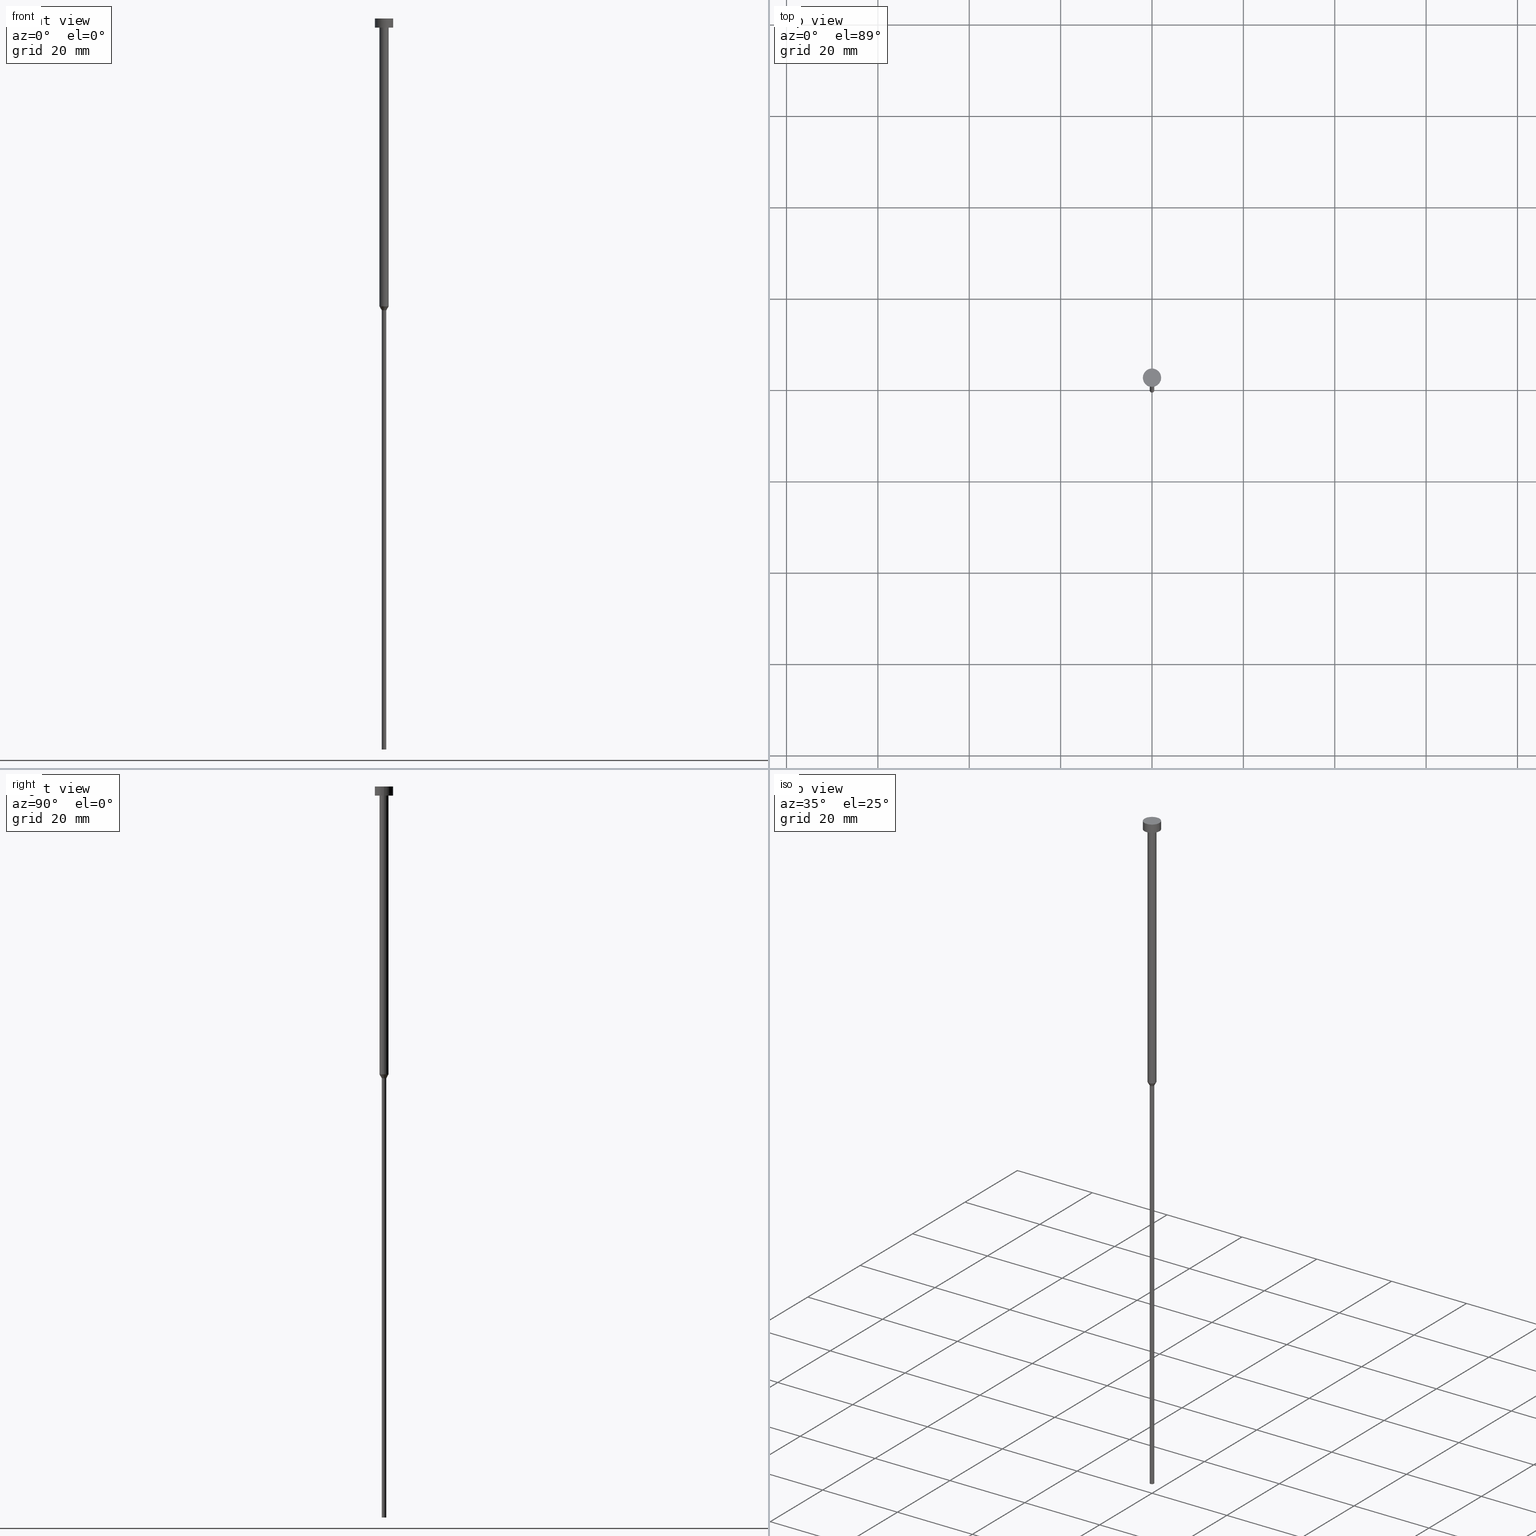
[diagram: canonical four-view strip — front | top / right | iso, engineering-drawing reading convention]
A machine part, canonical four-view strip (front | top / right | iso — engineering-drawing reading convention). The complete STEP part file that produces these views, byte-faithful:
ISO-10303-21;
HEADER;
FILE_DESCRIPTION (( 'STEP AP203' ),
    '1' );
FILE_NAME ('50a5.STEP',
    '2023-02-13T11:51:35',
    ( '' ),
    ( '' ),
    'SwSTEP 2.0',
    'SolidWorks 2019',
    '' );
FILE_SCHEMA (( 'CONFIG_CONTROL_DESIGN' ));
ENDSEC;

DATA;
#1 = VECTOR ( 'NONE', #180, 1000.000000000000000 ) ;
#2 = LINE ( 'NONE', #271, #299 ) ;
#3 = AXIS2_PLACEMENT_3D ( 'NONE', #47, #158, #269 ) ;
#4 = CARTESIAN_POINT ( 'NONE',  ( 0.000000000000000000, 0.000000000000000000, -160.0000000000000000 ) ) ;
#5 = DIRECTION ( 'NONE',  ( 0.000000000000000000, 0.000000000000000000, 1.000000000000000000 ) ) ;
#6 = CC_DESIGN_SECURITY_CLASSIFICATION ( #266, ( #83 ) ) ;
#7 = CARTESIAN_POINT ( 'NONE',  ( 2.000000000000000000, 0.000000000000000000, 0.000000000000000000 ) ) ;
#8 = ADVANCED_FACE ( 'NONE', ( #301 ), #300, .T. ) ;
#9 = FACE_OUTER_BOUND ( 'NONE', #208, .T. ) ;
#10 = ORIENTED_EDGE ( 'NONE', *, *, #172, .F. ) ;
#11 = CARTESIAN_POINT ( 'NONE',  ( -1.000000000000003331, 1.224646799147357151E-16, 0.000000000000000000 ) ) ;
#12 = ORGANIZATION ( 'NEUR�EN�', 'NEUR�EN�', '' ) ;
#13 = ORIENTED_EDGE ( 'NONE', *, *, #136, .T. ) ;
#14 = CARTESIAN_POINT ( 'NONE',  ( 0.000000000000000000, 0.000000000000000000, 0.000000000000000000 ) ) ;
#15 = ORIENTED_EDGE ( 'NONE', *, *, #143, .F. ) ;
#16 = ADVANCED_FACE ( 'NONE', ( #51 ), #99, .T. ) ;
#17 = ORIENTED_EDGE ( 'NONE', *, *, #264, .F. ) ;
#18 = LINE ( 'NONE', #48, #334 ) ;
#19 = LINE ( 'NONE', #130, #311 ) ;
#20 = CARTESIAN_POINT ( 'NONE',  ( -2.000000000000000000, 2.449293598294706414E-16, -2.000000000000000444 ) ) ;
#21 = CARTESIAN_POINT ( 'NONE',  ( 1.000000000000003109, 0.000000000000000000, -63.00000000000000000 ) ) ;
#22 = ADVANCED_BREP_SHAPE_REPRESENTATION ( '50a5', ( #231, #220 ), #63 ) ;
#23 = AXIS2_PLACEMENT_3D ( 'NONE', #223, #114, #65 ) ;
#24 = APPROVAL_DATE_TIME ( #30, #284 ) ;
#25 = ADVANCED_FACE ( 'NONE', ( #107, #267 ), #72, .T. ) ;
#26 = DIRECTION ( 'NONE',  ( 1.000000000000000000, 0.000000000000000000, 0.000000000000000000 ) ) ;
#27 = DIRECTION ( 'NONE',  ( 1.000000000000000000, 0.000000000000000000, 0.000000000000000000 ) ) ;
#28 = DIRECTION ( 'NONE',  ( 0.000000000000000000, 0.000000000000000000, -1.000000000000000000 ) ) ;
#29 = CC_DESIGN_PERSON_AND_ORGANIZATION_ASSIGNMENT ( #187, #326, ( #83 ) ) ;
#30 = DATE_AND_TIME ( #106, #142 ) ;
#31 = APPLICATION_CONTEXT ( 'configuration controlled 3d designs of mechanical parts and assemblies' ) ;
#32 = AXIS2_PLACEMENT_3D ( 'NONE', #351, #135, #296 ) ;
#33 = FACE_OUTER_BOUND ( 'NONE', #349, .T. ) ;
#34 = APPROVAL ( #89, 'NEUR�EN�' ) ;
#35 = AXIS2_PLACEMENT_3D ( 'NONE', #337, #254, #40 ) ;
#36 = LINE ( 'NONE', #95, #260 ) ;
#37 = ORIENTED_EDGE ( 'NONE', *, *, #216, .T. ) ;
#38 = DIRECTION ( 'NONE',  ( -0.000000000000000000, -0.000000000000000000, 1.000000000000000000 ) ) ;
#39 = VERTEX_POINT ( 'NONE', #297 ) ;
#40 = DIRECTION ( 'NONE',  ( 1.000000000000000000, 0.000000000000000000, 0.000000000000000000 ) ) ;
#41 = AXIS2_PLACEMENT_3D ( 'NONE', #246, #324, #276 ) ;
#42 = EDGE_LOOP ( 'NONE', ( #265, #155, #54, #101 ) ) ;
#43 = AXIS2_PLACEMENT_3D ( 'NONE', #77, #239, #157 ) ;
#44 = EDGE_LOOP ( 'NONE', ( #150, #178 ) ) ;
#45 = DIRECTION ( 'NONE',  ( -0.000000000000000000, -0.000000000000000000, 1.000000000000000000 ) ) ;
#46 = CC_DESIGN_APPROVAL ( #248, ( #309 ) ) ;
#47 = CARTESIAN_POINT ( 'NONE',  ( 0.000000000000000000, 0.000000000000000000, -63.86602540378444104 ) ) ;
#48 = CARTESIAN_POINT ( 'NONE',  ( -1.000000000000003109, 1.224646799147356905E-16, -63.00000000000000000 ) ) ;
#49 = EDGE_CURVE ( 'NONE', #341, #122, #206, .T. ) ;
#50 = SECURITY_CLASSIFICATION_LEVEL ( 'unclassified' ) ;
#51 = FACE_OUTER_BOUND ( 'NONE', #145, .T. ) ;
#52 = LOCAL_TIME ( 12, 51, 35.00000000000000000, #280 ) ;
#53 = APPROVAL_DATE_TIME ( #131, #248 ) ;
#54 = ORIENTED_EDGE ( 'NONE', *, *, #136, .F. ) ;
#55 =( LENGTH_UNIT ( ) NAMED_UNIT ( * ) SI_UNIT ( .MILLI., .METRE. ) );
#56 = EDGE_CURVE ( 'NONE', #119, #263, #327, .T. ) ;
#57 = DIRECTION ( 'NONE',  ( -0.000000000000000000, -0.000000000000000000, 1.000000000000000000 ) ) ;
#58 = DATE_AND_TIME ( #333, #105 ) ;
#59 = APPLICATION_PROTOCOL_DEFINITION ( 'international standard', 'config_control_design', 1994, #31 ) ;
#60 = CIRCLE ( 'NONE', #35, 2.000000000000000000 ) ;
#61 = PRODUCT_RELATED_PRODUCT_CATEGORY ( 'detail', '', ( #181 ) ) ;
#62 = APPLICATION_CONTEXT ( 'configuration controlled 3d designs of mechanical parts and assemblies' ) ;
#63 =( GEOMETRIC_REPRESENTATION_CONTEXT ( 3 ) GLOBAL_UNCERTAINTY_ASSIGNED_CONTEXT ( ( #153 ) ) GLOBAL_UNIT_ASSIGNED_CONTEXT ( ( #55, #113, #215 ) ) REPRESENTATION_CONTEXT ( 'NONE', 'WORKASPACE' ) );
#64 = DIRECTION ( 'NONE',  ( -0.000000000000000000, -0.000000000000000000, 1.000000000000000000 ) ) ;
#65 = DIRECTION ( 'NONE',  ( 1.000000000000000000, 0.000000000000000000, 0.000000000000000000 ) ) ;
#66 = ORIENTED_EDGE ( 'NONE', *, *, #172, .T. ) ;
#67 = CARTESIAN_POINT ( 'NONE',  ( 0.000000000000000000, 0.000000000000000000, -2.000000000000000444 ) ) ;
#68 = ORIENTED_EDGE ( 'NONE', *, *, #56, .F. ) ;
#69 = VERTEX_POINT ( 'NONE', #165 ) ;
#70 = ORIENTED_EDGE ( 'NONE', *, *, #156, .F. ) ;
#71 = ADVANCED_FACE ( 'NONE', ( #81 ), #275, .T. ) ;
#72 = PLANE ( 'NONE',  #256 ) ;
#73 = DIRECTION ( 'NONE',  ( 1.000000000000000000, 0.000000000000000000, 0.000000000000000000 ) ) ;
#74 = DIRECTION ( 'NONE',  ( -1.000000000000000000, 0.000000000000000000, -0.000000000000000000 ) ) ;
#75 = VECTOR ( 'NONE', #64, 1000.000000000000000 ) ;
#76 = CARTESIAN_POINT ( 'NONE',  ( 1.000000000000003109, 0.000000000000000000, -63.00000000000000000 ) ) ;
#77 = CARTESIAN_POINT ( 'NONE',  ( 0.000000000000000000, 0.000000000000000000, -2.000000000000000444 ) ) ;
#78 = PERSON_AND_ORGANIZATION ( #170, #12 ) ;
#79 = ORIENTED_EDGE ( 'NONE', *, *, #91, .F. ) ;
#80 = CALENDAR_DATE ( 2023, 13, 2 ) ;
#81 = FACE_OUTER_BOUND ( 'NONE', #186, .T. ) ;
#82 = LOCAL_TIME ( 12, 51, 35.00000000000000000, #244 ) ;
#83 = PRODUCT_DEFINITION_FORMATION_WITH_SPECIFIED_SOURCE ( 'LIBOVOLN�', '', #181, .NOT_KNOWN. ) ;
#84 = EDGE_CURVE ( 'NONE', #234, #152, #18, .T. ) ;
#85 = APPROVAL_STATUS ( 'not_yet_approved' ) ;
#86 = CARTESIAN_POINT ( 'NONE',  ( 0.000000000000000000, 0.000000000000000000, 0.000000000000000000 ) ) ;
#87 = PERSON_AND_ORGANIZATION_ROLE ( 'design_owner' ) ;
#88 = DIRECTION ( 'NONE',  ( -0.000000000000000000, -0.000000000000000000, 1.000000000000000000 ) ) ;
#89 = APPROVAL_STATUS ( 'not_yet_approved' ) ;
#90 = AXIS2_PLACEMENT_3D ( 'NONE', #354, #245, #121 ) ;
#91 = EDGE_CURVE ( 'NONE', #152, #119, #270, .T. ) ;
#92 = DIRECTION ( 'NONE',  ( -0.000000000000000000, -0.000000000000000000, 1.000000000000000000 ) ) ;
#93 = EDGE_CURVE ( 'NONE', #341, #290, #2, .T. ) ;
#94 = AXIS2_PLACEMENT_3D ( 'NONE', #67, #303, #339 ) ;
#95 = CARTESIAN_POINT ( 'NONE',  ( 0.5000000000000000000, 0.000000000000000000, 0.000000000000000000 ) ) ;
#96 = ORIENTED_EDGE ( 'NONE', *, *, #222, .T. ) ;
#97 = DIRECTION ( 'NONE',  ( 1.000000000000000000, 0.000000000000000000, 0.000000000000000000 ) ) ;
#98 = ORIENTED_EDGE ( 'NONE', *, *, #222, .F. ) ;
#99 = CONICAL_SURFACE ( 'NONE', #211, 1.000000000000003109, 0.5235987755982994818 ) ;
#100 = EDGE_LOOP ( 'NONE', ( #230, #347, #255, #217 ) ) ;
#101 = ORIENTED_EDGE ( 'NONE', *, *, #335, .F. ) ;
#102 = ORIENTED_EDGE ( 'NONE', *, *, #328, .F. ) ;
#103 = CARTESIAN_POINT ( 'NONE',  ( 0.000000000000000000, -2.000000000000000000, -2.000000000000000444 ) ) ;
#104 = DIRECTION ( 'NONE',  ( -0.000000000000000000, -0.000000000000000000, 1.000000000000000000 ) ) ;
#105 = LOCAL_TIME ( 12, 51, 35.00000000000000000, #329 ) ;
#106 = CALENDAR_DATE ( 2023, 13, 2 ) ;
#107 = FACE_BOUND ( 'NONE', #189, .T. ) ;
#108 = PERSON_AND_ORGANIZATION ( #170, #12 ) ;
#109 = CARTESIAN_POINT ( 'NONE',  ( 0.000000000000000000, 0.000000000000000000, 0.000000000000000000 ) ) ;
#110 = COORDINATED_UNIVERSAL_TIME_OFFSET ( 1, 0, .AHEAD. ) ;
#111 = CARTESIAN_POINT ( 'NONE',  ( 0.000000000000000000, 0.000000000000000000, -2.449293598294705921E-16 ) ) ;
#112 = EDGE_CURVE ( 'NONE', #290, #287, #141, .T. ) ;
#113 =( NAMED_UNIT ( * ) PLANE_ANGLE_UNIT ( ) SI_UNIT ( $, .RADIAN. ) );
#114 = DIRECTION ( 'NONE',  ( -0.000000000000000000, -0.000000000000000000, 1.000000000000000000 ) ) ;
#115 = PERSON_AND_ORGANIZATION ( #170, #12 ) ;
#116 = CC_DESIGN_APPROVAL ( #34, ( #266 ) ) ;
#117 = CYLINDRICAL_SURFACE ( 'NONE', #236, 0.5000000000000000000 ) ;
#118 = CARTESIAN_POINT ( 'NONE',  ( -1.000000000000003109, 1.224646799147356905E-16, -63.00000000000000000 ) ) ;
#119 = VERTEX_POINT ( 'NONE', #21 ) ;
#120 = AXIS2_PLACEMENT_3D ( 'NONE', #4, #28, #200 ) ;
#121 = DIRECTION ( 'NONE',  ( 1.000000000000000000, 0.000000000000000000, 0.000000000000000000 ) ) ;
#122 = VERTEX_POINT ( 'NONE', #128 ) ;
#123 = LINE ( 'NONE', #11, #75 ) ;
#124 = VERTEX_POINT ( 'NONE', #243 ) ;
#125 = CC_DESIGN_DATE_AND_TIME_ASSIGNMENT ( #224, #160, ( #266 ) ) ;
#126 = ORIENTED_EDGE ( 'NONE', *, *, #56, .T. ) ;
#127 = ORIENTED_EDGE ( 'NONE', *, *, #279, .T. ) ;
#128 = CARTESIAN_POINT ( 'NONE',  ( 2.000000000000000000, 0.000000000000000000, -2.000000000000000444 ) ) ;
#129 = CLOSED_SHELL ( 'NONE', ( #198, #151, #308, #8, #164, #317, #16, #241, #25, #232, #71 ) ) ;
#130 = CARTESIAN_POINT ( 'NONE',  ( -0.5000000000000000000, 6.123233995736766036E-17, 0.000000000000000000 ) ) ;
#131 = DATE_AND_TIME ( #274, #183 ) ;
#132 = CARTESIAN_POINT ( 'NONE',  ( 1.000000000000003331, 0.000000000000000000, 0.000000000000000000 ) ) ;
#133 = AXIS2_PLACEMENT_3D ( 'NONE', #14, #174, #286 ) ;
#134 = PERSON_AND_ORGANIZATION ( #170, #12 ) ;
#135 = DIRECTION ( 'NONE',  ( -0.000000000000000000, -0.000000000000000000, 1.000000000000000000 ) ) ;
#136 = EDGE_CURVE ( 'NONE', #119, #152, #188, .T. ) ;
#137 = CARTESIAN_POINT ( 'NONE',  ( 0.000000000000000000, 0.000000000000000000, -63.00000000000000000 ) ) ;
#138 = VECTOR ( 'NONE', #185, 1000.000000000000114 ) ;
#139 = PERSON_AND_ORGANIZATION ( #170, #12 ) ;
#140 = EDGE_CURVE ( 'NONE', #124, #234, #291, .T. ) ;
#141 = CIRCLE ( 'NONE', #346, 2.000000000000000000 ) ;
#142 = LOCAL_TIME ( 12, 51, 35.00000000000000000, #167 ) ;
#143 = EDGE_CURVE ( 'NONE', #289, #234, #19, .T. ) ;
#144 = CARTESIAN_POINT ( 'NONE',  ( 0.000000000000000000, 0.000000000000000000, -160.0000000000000000 ) ) ;
#145 = EDGE_LOOP ( 'NONE', ( #312, #345, #210, #79 ) ) ;
#146 = CARTESIAN_POINT ( 'NONE',  ( 0.000000000000000000, 0.000000000000000000, -2.000000000000000444 ) ) ;
#147 = ORIENTED_EDGE ( 'NONE', *, *, #344, .F. ) ;
#148 = VECTOR ( 'NONE', #171, 1000.000000000000000 ) ;
#149 = CYLINDRICAL_SURFACE ( 'NONE', #133, 1.000000000000003331 ) ;
#150 = ORIENTED_EDGE ( 'NONE', *, *, #279, .F. ) ;
#151 = ADVANCED_FACE ( 'NONE', ( #214 ), #323, .T. ) ;
#152 = VERTEX_POINT ( 'NONE', #118 ) ;
#153 = UNCERTAINTY_MEASURE_WITH_UNIT (LENGTH_MEASURE( 1.000000000000000082E-05 ), #55, 'distance_accuracy_value', 'NONE');
#154 = AXIS2_PLACEMENT_3D ( 'NONE', #109, #104, #191 ) ;
#155 = ORIENTED_EDGE ( 'NONE', *, *, #84, .T. ) ;
#156 = EDGE_CURVE ( 'NONE', #122, #287, #229, .T. ) ;
#157 = DIRECTION ( 'NONE',  ( 1.000000000000000000, 0.000000000000000000, 0.000000000000000000 ) ) ;
#158 = DIRECTION ( 'NONE',  ( -0.000000000000000000, -0.000000000000000000, 1.000000000000000000 ) ) ;
#159 = DIRECTION ( 'NONE',  ( -0.000000000000000000, -0.000000000000000000, 1.000000000000000000 ) ) ;
#160 = DATE_TIME_ROLE ( 'classification_date' ) ;
#161 = DIRECTION ( 'NONE',  ( 1.000000000000000000, 0.000000000000000000, 0.000000000000000000 ) ) ;
#162 = CONICAL_SURFACE ( 'NONE', #272, 1.000000000000003109, 0.5235987755982994818 ) ;
#163 = PERSON_AND_ORGANIZATION ( #170, #12 ) ;
#164 = ADVANCED_FACE ( 'NONE', ( #310 ), #233, .T. ) ;
#165 = CARTESIAN_POINT ( 'NONE',  ( -1.000000000000003553, 1.224646799147357398E-16, -2.000000000000000444 ) ) ;
#166 = DIRECTION ( 'NONE',  ( 1.000000000000000000, 0.000000000000000000, 0.000000000000000000 ) ) ;
#167 = COORDINATED_UNIVERSAL_TIME_OFFSET ( 1, 0, .AHEAD. ) ;
#168 = CARTESIAN_POINT ( 'NONE',  ( -0.5000000000000000000, 6.123233995736766036E-17, -160.0000000000000000 ) ) ;
#169 = DIRECTION ( 'NONE',  ( 1.000000000000000000, 0.000000000000000000, 0.000000000000000000 ) ) ;
#170 = PERSON ( 'NEUR�EN�', 'NEUR�EN�', 'NEUR�EN�', ('NEUR�EN�'), ('NEUR�EN�'), ('NEUR�EN�') ) ;
#171 = DIRECTION ( 'NONE',  ( -0.000000000000000000, -0.000000000000000000, 1.000000000000000000 ) ) ;
#172 = EDGE_CURVE ( 'NONE', #69, #263, #353, .T. ) ;
#173 = ORIENTED_EDGE ( 'NONE', *, *, #237, .T. ) ;
#174 = DIRECTION ( 'NONE',  ( -0.000000000000000000, -0.000000000000000000, 1.000000000000000000 ) ) ;
#175 = ORIENTED_EDGE ( 'NONE', *, *, #112, .T. ) ;
#176 = FACE_OUTER_BOUND ( 'NONE', #100, .T. ) ;
#177 = ORIENTED_EDGE ( 'NONE', *, *, #93, .T. ) ;
#178 = ORIENTED_EDGE ( 'NONE', *, *, #49, .F. ) ;
#179 = EDGE_LOOP ( 'NONE', ( #13, #285, #262, #68 ) ) ;
#180 = DIRECTION ( 'NONE',  ( -0.000000000000000000, -0.000000000000000000, 1.000000000000000000 ) ) ;
#181 = PRODUCT ( '50a5', '50a5', '', ( #332 ) ) ;
#182 = CARTESIAN_POINT ( 'NONE',  ( 0.000000000000000000, 0.000000000000000000, -63.86602540378444104 ) ) ;
#183 = LOCAL_TIME ( 12, 51, 35.00000000000000000, #110 ) ;
#184 = CARTESIAN_POINT ( 'NONE',  ( 0.000000000000000000, 0.000000000000000000, -1.224646799147352961E-16 ) ) ;
#185 = DIRECTION ( 'NONE',  ( 0.5000000000000005551, 0.000000000000000000, 0.8660254037844382635 ) ) ;
#186 = EDGE_LOOP ( 'NONE', ( #173, #175 ) ) ;
#187 = PERSON_AND_ORGANIZATION ( #170, #12 ) ;
#188 = CIRCLE ( 'NONE', #32, 1.000000000000003109 ) ;
#189 = EDGE_LOOP ( 'NONE', ( #355, #66 ) ) ;
#190 = CC_DESIGN_PERSON_AND_ORGANIZATION_ASSIGNMENT ( #115, #87, ( #181 ) ) ;
#191 = DIRECTION ( 'NONE',  ( 1.000000000000000000, 0.000000000000000000, 0.000000000000000000 ) ) ;
#192 = AXIS2_PLACEMENT_3D ( 'NONE', #331, #88, #305 ) ;
#193 = APPROVAL_STATUS ( 'not_yet_approved' ) ;
#194 = DIRECTION ( 'NONE',  ( 1.000000000000000000, 0.000000000000000000, 0.000000000000000000 ) ) ;
#195 = APPLICATION_PROTOCOL_DEFINITION ( 'international standard', 'config_control_design', 1994, #62 ) ;
#196 = CYLINDRICAL_SURFACE ( 'NONE', #225, 2.000000000000000000 ) ;
#197 = AXIS2_PLACEMENT_3D ( 'NONE', #146, #92, #97 ) ;
#198 = ADVANCED_FACE ( 'NONE', ( #261 ), #288, .T. ) ;
#199 = DATE_AND_TIME ( #228, #52 ) ;
#200 = DIRECTION ( 'NONE',  ( -1.000000000000000000, 0.000000000000000000, -0.000000000000000000 ) ) ;
#201 = CIRCLE ( 'NONE', #294, 0.5000000000000000000 ) ;
#202 = DIRECTION ( 'NONE',  ( 1.000000000000000000, 0.000000000000000000, 0.000000000000000000 ) ) ;
#203 = CARTESIAN_POINT ( 'NONE',  ( -2.000000000000000000, 2.449293598294706414E-16, -2.449293598294705921E-16 ) ) ;
#204 = CC_DESIGN_PERSON_AND_ORGANIZATION_ASSIGNMENT ( #78, #298, ( #83 ) ) ;
#205 = EDGE_LOOP ( 'NONE', ( #96, #319, #207, #221 ) ) ;
#206 = CIRCLE ( 'NONE', #43, 2.000000000000000000 ) ;
#207 = ORIENTED_EDGE ( 'NONE', *, *, #140, .F. ) ;
#208 = EDGE_LOOP ( 'NONE', ( #17, #219, #126, #10 ) ) ;
#209 = CC_DESIGN_PERSON_AND_ORGANIZATION_ASSIGNMENT ( #134, #218, ( #309 ) ) ;
#210 = ORIENTED_EDGE ( 'NONE', *, *, #335, .T. ) ;
#211 = AXIS2_PLACEMENT_3D ( 'NONE', #137, #325, #161 ) ;
#212 = DIRECTION ( 'NONE',  ( 1.000000000000000000, 0.000000000000000000, 0.000000000000000000 ) ) ;
#213 = DIRECTION ( 'NONE',  ( 1.000000000000000000, 0.000000000000000000, 0.000000000000000000 ) ) ;
#214 = FACE_OUTER_BOUND ( 'NONE', #179, .T. ) ;
#215 =( NAMED_UNIT ( * ) SI_UNIT ( $, .STERADIAN. ) SOLID_ANGLE_UNIT ( ) );
#216 = EDGE_CURVE ( 'NONE', #39, #124, #36, .T. ) ;
#217 = ORIENTED_EDGE ( 'NONE', *, *, #112, .F. ) ;
#218 = PERSON_AND_ORGANIZATION_ROLE ( 'creator' ) ;
#219 = ORIENTED_EDGE ( 'NONE', *, *, #91, .T. ) ;
#220 = AXIS2_PLACEMENT_3D ( 'NONE', #306, #5, #169 ) ;
#221 = ORIENTED_EDGE ( 'NONE', *, *, #216, .F. ) ;
#222 = EDGE_CURVE ( 'NONE', #39, #289, #249, .T. ) ;
#223 = CARTESIAN_POINT ( 'NONE',  ( 0.000000000000000000, 0.000000000000000000, 0.000000000000000000 ) ) ;
#224 = DATE_AND_TIME ( #80, #82 ) ;
#225 = AXIS2_PLACEMENT_3D ( 'NONE', #86, #38, #166 ) ;
#226 = SHAPE_DEFINITION_REPRESENTATION ( #268, #22 ) ;
#227 = CARTESIAN_POINT ( 'NONE',  ( 1.000000000000003553, 0.000000000000000000, -2.000000000000000444 ) ) ;
#228 = CALENDAR_DATE ( 2023, 13, 2 ) ;
#229 = LINE ( 'NONE', #7, #148 ) ;
#230 = ORIENTED_EDGE ( 'NONE', *, *, #93, .F. ) ;
#231 = MANIFOLD_SOLID_BREP ( 'Rotovat1', #129 ) ;
#232 = ADVANCED_FACE ( 'NONE', ( #176 ), #196, .T. ) ;
#233 = PLANE ( 'NONE',  #120 ) ;
#234 = VERTEX_POINT ( 'NONE', #253 ) ;
#235 = ORIENTED_EDGE ( 'NONE', *, *, #237, .F. ) ;
#236 = AXIS2_PLACEMENT_3D ( 'NONE', #277, #250, #73 ) ;
#237 = EDGE_CURVE ( 'NONE', #287, #290, #60, .T. ) ;
#238 = DIRECTION ( 'NONE',  ( -0.5000000000000005551, 6.123233995736773431E-17, 0.8660254037844382635 ) ) ;
#239 = DIRECTION ( 'NONE',  ( -0.000000000000000000, -0.000000000000000000, 1.000000000000000000 ) ) ;
#240 = DATE_TIME_ROLE ( 'creation_date' ) ;
#241 = ADVANCED_FACE ( 'NONE', ( #9 ), #149, .T. ) ;
#242 = CIRCLE ( 'NONE', #41, 0.5000000000000000000 ) ;
#243 = CARTESIAN_POINT ( 'NONE',  ( 0.5000000000000000000, 0.000000000000000000, -63.86602540378444104 ) ) ;
#244 = COORDINATED_UNIVERSAL_TIME_OFFSET ( 1, 0, .AHEAD. ) ;
#245 = DIRECTION ( 'NONE',  ( -0.000000000000000000, -0.000000000000000000, 1.000000000000000000 ) ) ;
#246 = CARTESIAN_POINT ( 'NONE',  ( 0.000000000000000000, 0.000000000000000000, -160.0000000000000000 ) ) ;
#247 = DIRECTION ( 'NONE',  ( -0.000000000000000000, -0.000000000000000000, 1.000000000000000000 ) ) ;
#248 = APPROVAL ( #85, 'NEUR�EN�' ) ;
#249 = CIRCLE ( 'NONE', #340, 0.5000000000000000000 ) ;
#250 = DIRECTION ( 'NONE',  ( -0.000000000000000000, -0.000000000000000000, 1.000000000000000000 ) ) ;
#251 = PERSON_AND_ORGANIZATION_ROLE ( 'classification_officer' ) ;
#252 = EDGE_CURVE ( 'NONE', #263, #69, #336, .T. ) ;
#253 = CARTESIAN_POINT ( 'NONE',  ( -0.5000000000000000000, 6.123233995736766036E-17, -63.86602540378444104 ) ) ;
#254 = DIRECTION ( 'NONE',  ( -0.000000000000000000, -0.000000000000000000, 1.000000000000000000 ) ) ;
#255 = ORIENTED_EDGE ( 'NONE', *, *, #156, .T. ) ;
#256 = AXIS2_PLACEMENT_3D ( 'NONE', #103, #321, #74 ) ;
#257 = CC_DESIGN_PERSON_AND_ORGANIZATION_ASSIGNMENT ( #139, #251, ( #266 ) ) ;
#258 = CARTESIAN_POINT ( 'NONE',  ( 2.000000000000000000, 0.000000000000000000, -2.449293598294705921E-16 ) ) ;
#259 = ORIENTED_EDGE ( 'NONE', *, *, #344, .T. ) ;
#260 = VECTOR ( 'NONE', #343, 1000.000000000000000 ) ;
#261 = FACE_OUTER_BOUND ( 'NONE', #320, .T. ) ;
#262 = ORIENTED_EDGE ( 'NONE', *, *, #252, .F. ) ;
#263 = VERTEX_POINT ( 'NONE', #227 ) ;
#264 = EDGE_CURVE ( 'NONE', #152, #69, #123, .T. ) ;
#265 = ORIENTED_EDGE ( 'NONE', *, *, #140, .T. ) ;
#266 = SECURITY_CLASSIFICATION ( '', '', #50 ) ;
#267 = FACE_OUTER_BOUND ( 'NONE', #44, .T. ) ;
#268 = PRODUCT_DEFINITION_SHAPE ( 'NONE', 'NONE',  #309 ) ;
#269 = DIRECTION ( 'NONE',  ( 1.000000000000000000, 0.000000000000000000, 0.000000000000000000 ) ) ;
#270 = CIRCLE ( 'NONE', #338, 1.000000000000003109 ) ;
#271 = CARTESIAN_POINT ( 'NONE',  ( -2.000000000000000000, 2.449293598294706414E-16, 0.000000000000000000 ) ) ;
#272 = AXIS2_PLACEMENT_3D ( 'NONE', #281, #314, #194 ) ;
#273 = CARTESIAN_POINT ( 'NONE',  ( 0.000000000000000000, 0.000000000000000000, -63.00000000000000000 ) ) ;
#274 = CALENDAR_DATE ( 2023, 13, 2 ) ;
#275 = PLANE ( 'NONE',  #292 ) ;
#276 = DIRECTION ( 'NONE',  ( 1.000000000000000000, 0.000000000000000000, 0.000000000000000000 ) ) ;
#277 = CARTESIAN_POINT ( 'NONE',  ( 0.000000000000000000, 0.000000000000000000, 0.000000000000000000 ) ) ;
#278 = APPROVAL_ROLE ( '' ) ;
#279 = EDGE_CURVE ( 'NONE', #122, #341, #330, .T. ) ;
#280 = COORDINATED_UNIVERSAL_TIME_OFFSET ( 1, 0, .AHEAD. ) ;
#281 = CARTESIAN_POINT ( 'NONE',  ( 0.000000000000000000, 0.000000000000000000, -63.00000000000000000 ) ) ;
#282 = APPROVAL_PERSON_ORGANIZATION ( #108, #284, #302 ) ;
#283 = FACE_OUTER_BOUND ( 'NONE', #42, .T. ) ;
#284 = APPROVAL ( #193, 'NEUR�EN�' ) ;
#285 = ORIENTED_EDGE ( 'NONE', *, *, #264, .T. ) ;
#286 = DIRECTION ( 'NONE',  ( 1.000000000000000000, 0.000000000000000000, 0.000000000000000000 ) ) ;
#287 = VERTEX_POINT ( 'NONE', #258 ) ;
#288 = CYLINDRICAL_SURFACE ( 'NONE', #23, 2.000000000000000000 ) ;
#289 = VERTEX_POINT ( 'NONE', #168 ) ;
#290 = VERTEX_POINT ( 'NONE', #203 ) ;
#291 = CIRCLE ( 'NONE', #3, 0.5000000000000000000 ) ;
#292 = AXIS2_PLACEMENT_3D ( 'NONE', #184, #293, #212 ) ;
#293 = DIRECTION ( 'NONE',  ( 0.000000000000000000, -0.000000000000000000, 1.000000000000000000 ) ) ;
#294 = AXIS2_PLACEMENT_3D ( 'NONE', #182, #295, #213 ) ;
#295 = DIRECTION ( 'NONE',  ( -0.000000000000000000, -0.000000000000000000, 1.000000000000000000 ) ) ;
#296 = DIRECTION ( 'NONE',  ( 1.000000000000000000, 0.000000000000000000, 0.000000000000000000 ) ) ;
#297 = CARTESIAN_POINT ( 'NONE',  ( 0.5000000000000000000, 0.000000000000000000, -160.0000000000000000 ) ) ;
#298 = PERSON_AND_ORGANIZATION_ROLE ( 'creator' ) ;
#299 = VECTOR ( 'NONE', #247, 1000.000000000000000 ) ;
#300 = CYLINDRICAL_SURFACE ( 'NONE', #154, 0.5000000000000000000 ) ;
#301 = FACE_OUTER_BOUND ( 'NONE', #205, .T. ) ;
#302 = APPROVAL_ROLE ( '' ) ;
#303 = DIRECTION ( 'NONE',  ( -0.000000000000000000, -0.000000000000000000, 1.000000000000000000 ) ) ;
#304 = PERSON_AND_ORGANIZATION ( #170, #12 ) ;
#305 = DIRECTION ( 'NONE',  ( 1.000000000000000000, 0.000000000000000000, 0.000000000000000000 ) ) ;
#306 = CARTESIAN_POINT ( 'NONE',  ( 0.000000000000000000, 0.000000000000000000, 0.000000000000000000 ) ) ;
#307 = APPROVAL_PERSON_ORGANIZATION ( #163, #34, #313 ) ;
#308 = ADVANCED_FACE ( 'NONE', ( #283 ), #162, .T. ) ;
#309 = PRODUCT_DEFINITION ( 'NEZN�M�', '', #83, #316 ) ;
#310 = FACE_OUTER_BOUND ( 'NONE', #315, .T. ) ;
#311 = VECTOR ( 'NONE', #352, 1000.000000000000000 ) ;
#312 = ORIENTED_EDGE ( 'NONE', *, *, #84, .F. ) ;
#313 = APPROVAL_ROLE ( '' ) ;
#314 = DIRECTION ( 'NONE',  ( -0.000000000000000000, -0.000000000000000000, 1.000000000000000000 ) ) ;
#315 = EDGE_LOOP ( 'NONE', ( #98, #147 ) ) ;
#316 = DESIGN_CONTEXT ( 'detailed design', #62, 'design' ) ;
#317 = ADVANCED_FACE ( 'NONE', ( #33 ), #117, .T. ) ;
#318 = APPROVAL_PERSON_ORGANIZATION ( #304, #248, #278 ) ;
#319 = ORIENTED_EDGE ( 'NONE', *, *, #143, .T. ) ;
#320 = EDGE_LOOP ( 'NONE', ( #127, #177, #235, #70 ) ) ;
#321 = DIRECTION ( 'NONE',  ( 0.000000000000000000, 0.000000000000000000, -1.000000000000000000 ) ) ;
#322 = LINE ( 'NONE', #76, #138 ) ;
#323 = CYLINDRICAL_SURFACE ( 'NONE', #90, 1.000000000000003331 ) ;
#324 = DIRECTION ( 'NONE',  ( -0.000000000000000000, -0.000000000000000000, 1.000000000000000000 ) ) ;
#325 = DIRECTION ( 'NONE',  ( -0.000000000000000000, -0.000000000000000000, 1.000000000000000000 ) ) ;
#326 = PERSON_AND_ORGANIZATION_ROLE ( 'design_supplier' ) ;
#327 = LINE ( 'NONE', #132, #1 ) ;
#328 = EDGE_CURVE ( 'NONE', #234, #124, #201, .T. ) ;
#329 = COORDINATED_UNIVERSAL_TIME_OFFSET ( 1, 0, .AHEAD. ) ;
#330 = CIRCLE ( 'NONE', #192, 2.000000000000000000 ) ;
#331 = CARTESIAN_POINT ( 'NONE',  ( 0.000000000000000000, 0.000000000000000000, -2.000000000000000444 ) ) ;
#332 = MECHANICAL_CONTEXT ( 'NONE', #31, 'mechanical' ) ;
#333 = CALENDAR_DATE ( 2023, 13, 2 ) ;
#334 = VECTOR ( 'NONE', #238, 1000.000000000000114 ) ;
#335 = EDGE_CURVE ( 'NONE', #124, #119, #322, .T. ) ;
#336 = CIRCLE ( 'NONE', #197, 1.000000000000003553 ) ;
#337 = CARTESIAN_POINT ( 'NONE',  ( 0.000000000000000000, 0.000000000000000000, -2.449293598294705921E-16 ) ) ;
#338 = AXIS2_PLACEMENT_3D ( 'NONE', #273, #159, #27 ) ;
#339 = DIRECTION ( 'NONE',  ( 1.000000000000000000, 0.000000000000000000, 0.000000000000000000 ) ) ;
#340 = AXIS2_PLACEMENT_3D ( 'NONE', #144, #57, #202 ) ;
#341 = VERTEX_POINT ( 'NONE', #20 ) ;
#342 = APPROVAL_DATE_TIME ( #199, #34 ) ;
#343 = DIRECTION ( 'NONE',  ( -0.000000000000000000, -0.000000000000000000, 1.000000000000000000 ) ) ;
#344 = EDGE_CURVE ( 'NONE', #289, #39, #242, .T. ) ;
#345 = ORIENTED_EDGE ( 'NONE', *, *, #328, .T. ) ;
#346 = AXIS2_PLACEMENT_3D ( 'NONE', #111, #45, #26 ) ;
#347 = ORIENTED_EDGE ( 'NONE', *, *, #49, .T. ) ;
#348 = CC_DESIGN_APPROVAL ( #284, ( #83 ) ) ;
#349 = EDGE_LOOP ( 'NONE', ( #15, #259, #37, #102 ) ) ;
#350 = CC_DESIGN_DATE_AND_TIME_ASSIGNMENT ( #58, #240, ( #309 ) ) ;
#351 = CARTESIAN_POINT ( 'NONE',  ( 0.000000000000000000, 0.000000000000000000, -63.00000000000000000 ) ) ;
#352 = DIRECTION ( 'NONE',  ( -0.000000000000000000, -0.000000000000000000, 1.000000000000000000 ) ) ;
#353 = CIRCLE ( 'NONE', #94, 1.000000000000003553 ) ;
#354 = CARTESIAN_POINT ( 'NONE',  ( 0.000000000000000000, 0.000000000000000000, 0.000000000000000000 ) ) ;
#355 = ORIENTED_EDGE ( 'NONE', *, *, #252, .T. ) ;
ENDSEC;
END-ISO-10303-21;
